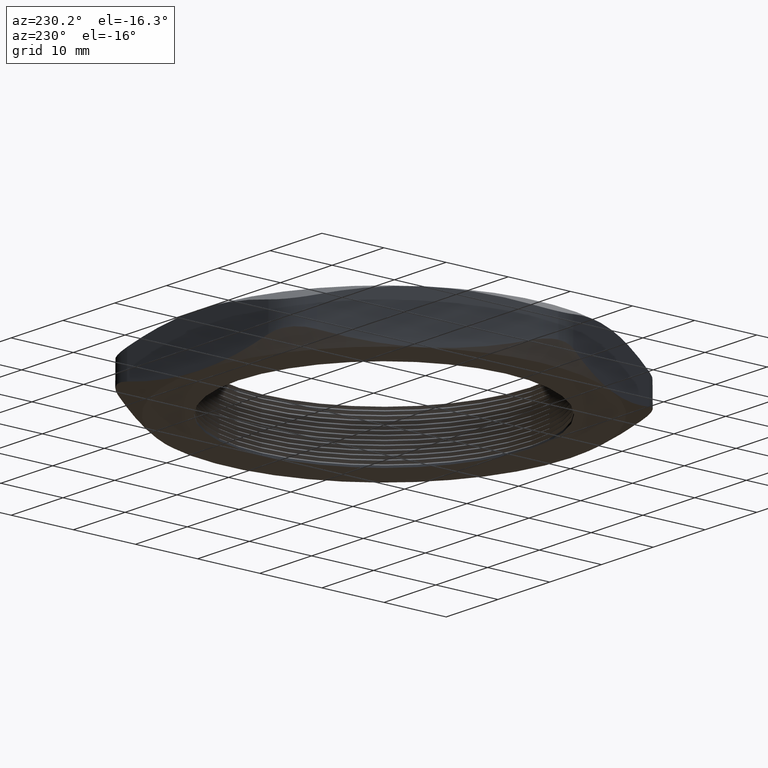
[diagram: clean part render]
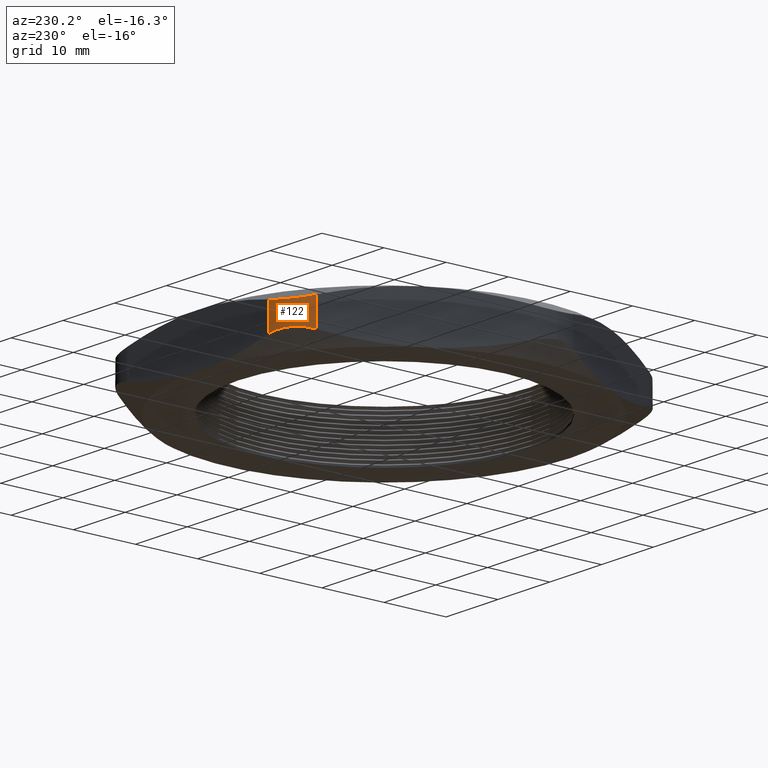
[diagram: same view with one face highlighted and labeled with its STEP entity id]
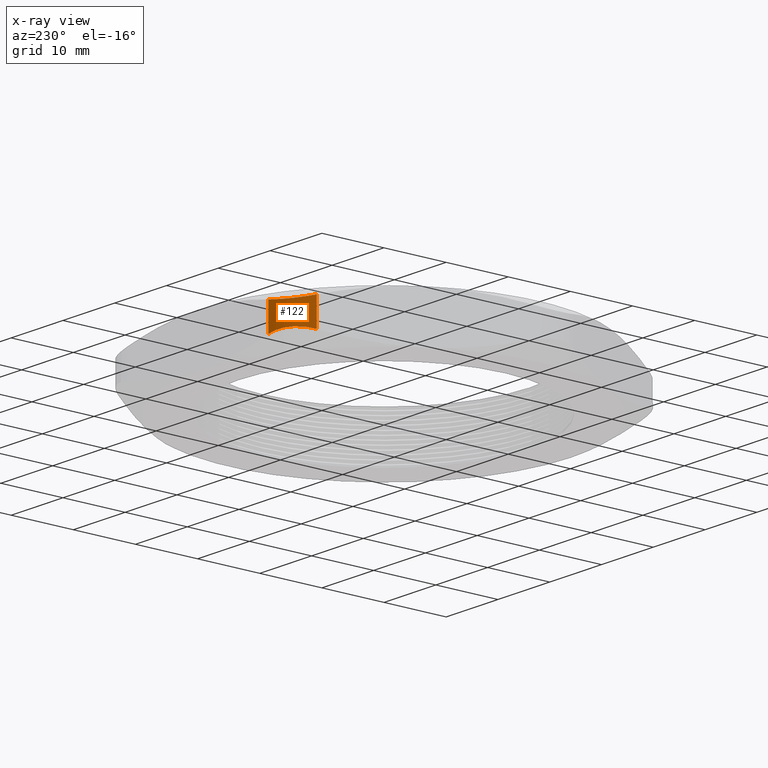
[diagram: x-ray of the same camera — body ghosted, the highlighted face saturated]
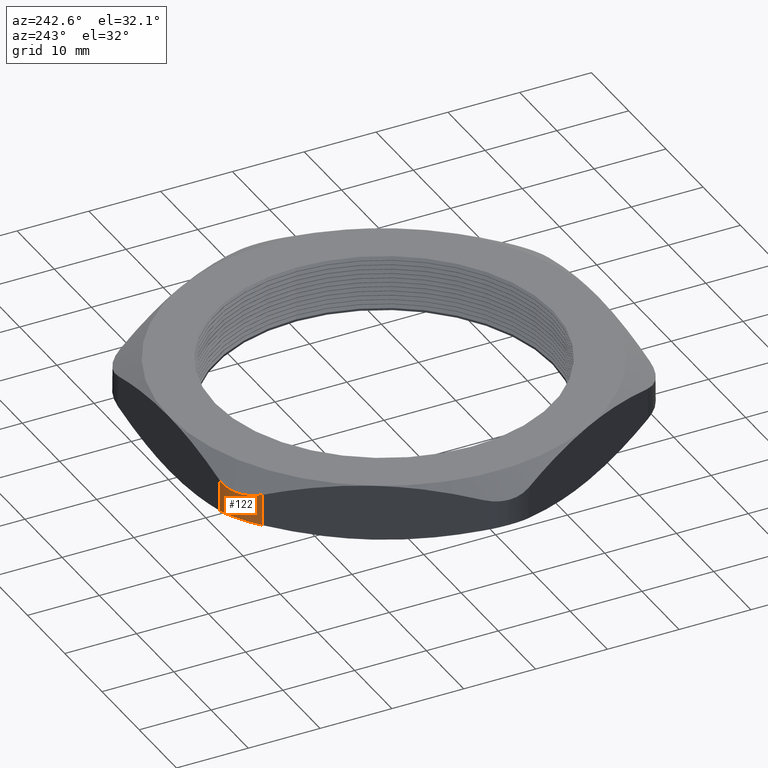
[diagram: same view with one face highlighted and labeled with its STEP entity id]
A machine part, auxiliary view. The second image highlights one B-rep face of the part: STEP entity #122.
The next image is the same camera in x-ray: the body ghosted, the highlighted face saturated — about 0% of this face is hidden behind the body in this view.
A second angle (auxiliary view) of the same face is appended — the face is thin or edge-on in the first view.
In plain terms, the highlighted cylindrical surface (partial cylindrical patch) has radius 6.35 mm, axis along (0, 0, -1).
Its self-contained STEP definition (entity closure, byte-faithful):
#1 = CARTESIAN_POINT ( 'NONE',  ( -0.5803717184231758100, 1.177156764165109300, 0.07637160150552643700 ) ) ;
#2 = CARTESIAN_POINT ( 'NONE',  ( -0.5585386968758955200, 1.180000000000000400, 0.07237975066804328000 ) ) ;
#3 = CARTESIAN_POINT ( 'NONE',  ( -0.6118967407510949000, 1.168744920922675700, 0.08036293289793375300 ) ) ;
#4 = CARTESIAN_POINT ( 'NONE',  ( -0.6222508287803749600, 1.165250896099422800, 0.08137240177445200000 ) ) ;
#5 = CARTESIAN_POINT ( 'NONE',  ( -0.5369357503463517700, 1.180000000000000200, 0.06721404586569498800 ) ) ;
#57 = CARTESIAN_POINT ( 'NONE',  ( -0.6426363754475586900, 1.156823774276417400, 0.08272984357175608400 ) ) ;
#58 = CARTESIAN_POINT ( 'NONE',  ( -0.6526144673638901700, 1.151897965371903900, 0.08306829295617788900 ) ) ;
#59 = CARTESIAN_POINT ( 'NONE',  ( -0.6716009541221924500, 1.140915991567793800, 0.08306013245854906900 ) ) ;
#60 = CARTESIAN_POINT ( 'NONE',  ( -0.6806907329805713700, 1.134828307281984900, 0.08271979029129170000 ) ) ;
#61 = CARTESIAN_POINT ( 'NONE',  ( -0.6980647301955033000, 1.121461699430824900, 0.08136507564973520500 ) ) ;
#62 = CARTESIAN_POINT ( 'NONE',  ( -0.7064093568846969700, 1.114115284490268200, 0.08033741714334180500 ) ) ;
#63 = CARTESIAN_POINT ( 'NONE',  ( -0.7295674056393834900, 1.090847786939236100, 0.07630181465680764600 ) ) ;
#64 = CARTESIAN_POINT ( 'NONE',  ( -0.7426431885255213600, 1.073704265578844700, 0.07237852613360935800 ) ) ;
#65 = CARTESIAN_POINT ( 'NONE',  ( -0.7534421012924612500, 1.055000000000000200, 0.06721404586569494600 ) ) ;
#69 = B_SPLINE_CURVE_WITH_KNOTS ( 'NONE', 3,
 ( #65, #64, #63, #62, #61, #60, #59, #58, #57, #4, #3, #1, #2, #5 ),
 .UNSPECIFIED., .F., .F.,
 ( 4, 2, 2, 2, 2, 2, 4 ),
 ( 4.982613841084488400E-018, 0.001669271586080337600, 0.002503907379120500300, 0.003338543172160662700, 0.004173178965200825100, 0.005007814758240988400, 0.006677086344321321100 ),
 .UNSPECIFIED. ) ;
#79 = CARTESIAN_POINT ( 'NONE',  ( -0.5369357503463516600, 0.9300000000000000500, 0.3100000000000000000 ) ) ;
#89 = FACE_OUTER_BOUND ( 'NONE', #121, .T. ) ;
#96 = DIRECTION ( 'NONE',  ( -1.000000000000000000, 0.0000000000000000000, 0.0000000000000000000 ) ) ;
#97 = DIRECTION ( 'NONE',  ( 0.0000000000000000000, 0.0000000000000000000, -1.000000000000000000 ) ) ;
#98 = AXIS2_PLACEMENT_3D ( 'NONE', #79, #97, #96 ) ;
#99 = CYLINDRICAL_SURFACE ( 'NONE', #98, 0.2500000000000000000 ) ;
#114 = EDGE_CURVE ( 'NONE', #2673, #2574, #69, .T. ) ;
#116 = ORIENTED_EDGE ( 'NONE', *, *, #114, .F. ) ;
#117 = ORIENTED_EDGE ( 'NONE', *, *, #2672, .F. ) ;
#119 = ORIENTED_EDGE ( 'NONE', *, *, #2414, .F. ) ;
#120 = ORIENTED_EDGE ( 'NONE', *, *, #2819, .F. ) ;
#121 = EDGE_LOOP ( 'NONE', ( #120, #119, #116, #117 ) ) ;
#122 = ADVANCED_FACE ( 'NONE', ( #89 ), #99, .T. ) ;
#1213 = CARTESIAN_POINT ( 'NONE',  ( -0.5369357503463517700, 1.180000000000000200, 0.2427859541343050100 ) ) ;
#1214 = DIRECTION ( 'NONE',  ( 0.0000000000000000000, 0.0000000000000000000, 1.000000000000000000 ) ) ;
#1215 = VECTOR ( 'NONE', #1214, 39.37007874015748100 ) ;
#1216 = CARTESIAN_POINT ( 'NONE',  ( -0.5369357503463517700, 1.180000000000000200, 0.3100000000000000000 ) ) ;
#1217 = LINE ( 'NONE', #1216, #1215 ) ;
#1602 = CARTESIAN_POINT ( 'NONE',  ( -0.5369357503463517700, 1.180000000000000200, 0.06721404586569498800 ) ) ;
#1771 = DIRECTION ( 'NONE',  ( 0.0000000000000000000, 0.0000000000000000000, -1.000000000000000000 ) ) ;
#1772 = VECTOR ( 'NONE', #1771, 39.37007874015748100 ) ;
#1773 = CARTESIAN_POINT ( 'NONE',  ( -0.7534421012924613600, 1.055000000000000200, 0.3100000000000000000 ) ) ;
#1774 = LINE ( 'NONE', #1773, #1772 ) ;
#1781 = CARTESIAN_POINT ( 'NONE',  ( -0.7534421012924613600, 1.055000000000000200, 0.2427859541343050700 ) ) ;
#1828 = CARTESIAN_POINT ( 'NONE',  ( -0.7534421012924612500, 1.055000000000000200, 0.06721404586569494600 ) ) ;
#2079 = B_SPLINE_CURVE_WITH_KNOTS ( 'NONE', 3,
 ( #2139, #2138, #2137, #2136, #2135, #2134, #2133, #2132, #2131, #2130, #2129, #2128, #2127, #2126 ),
 .UNSPECIFIED., .F., .F.,
 ( 4, 2, 2, 2, 2, 2, 4 ),
 ( 1.734723475976807100E-018, 0.001669271586080331800, 0.002503907379120496800, 0.003338543172160661800, 0.004173178965200826900, 0.005007814758240991900, 0.006677086344321321900 ),
 .UNSPECIFIED. ) ;
#2126 = CARTESIAN_POINT ( 'NONE',  ( -0.7534421012924613600, 1.055000000000000200, 0.2427859541343050700 ) ) ;
#2127 = CARTESIAN_POINT ( 'NONE',  ( -0.7426406280276897100, 1.073708700491182700, 0.2376202493319567200 ) ) ;
#2128 = CARTESIAN_POINT ( 'NONE',  ( -0.7292618027920839700, 1.091195033875054200, 0.2336283984944736200 ) ) ;
#2129 = CARTESIAN_POINT ( 'NONE',  ( -0.7062144216875241300, 1.114290582444687100, 0.2296370671020663000 ) ) ;
#2130 = CARTESIAN_POINT ( 'NONE',  ( -0.6980114634144938300, 1.121510473299437400, 0.2286275982255480400 ) ) ;
#2131 = CARTESIAN_POINT ( 'NONE',  ( -0.6805205885013930800, 1.134951313671749100, 0.2272701564282439400 ) ) ;
#2132 = CARTESIAN_POINT ( 'NONE',  ( -0.6712656668977307100, 1.141129690300331400, 0.2269317070438221000 ) ) ;
#2133 = CARTESIAN_POINT ( 'NONE',  ( -0.6522617552205251000, 1.152081483259583200, 0.2269398675414509000 ) ) ;
#2134 = CARTESIAN_POINT ( 'NONE',  ( -0.6424447765496056300, 1.156909620522817500, 0.2272802097087083500 ) ) ;
#2135 = CARTESIAN_POINT ( 'NONE',  ( -0.6221819559806108800, 1.165272639550648500, 0.2286349243502648300 ) ) ;
#2136 = CARTESIAN_POINT ( 'NONE',  ( -0.6116474606707502600, 1.168826090778309500, 0.2296625828566580800 ) ) ;
#2137 = CARTESIAN_POINT ( 'NONE',  ( -0.5799181923317208200, 1.177247800526430600, 0.2336981853431921700 ) ) ;
#2138 = CARTESIAN_POINT ( 'NONE',  ( -0.5585335758802318900, 1.179999999999999900, 0.2376214738663904000 ) ) ;
#2139 = CARTESIAN_POINT ( 'NONE',  ( -0.5369357503463517700, 1.180000000000000200, 0.2427859541343050100 ) ) ;
#2414 = EDGE_CURVE ( 'NONE', #2574, #2415, #1217, .T. ) ;
#2415 = VERTEX_POINT ( 'NONE', #1213 ) ;
#2574 = VERTEX_POINT ( 'NONE', #1602 ) ;
#2670 = VERTEX_POINT ( 'NONE', #1781 ) ;
#2672 = EDGE_CURVE ( 'NONE', #2670, #2673, #1774, .T. ) ;
#2673 = VERTEX_POINT ( 'NONE', #1828 ) ;
#2819 = EDGE_CURVE ( 'NONE', #2415, #2670, #2079, .T. ) ;